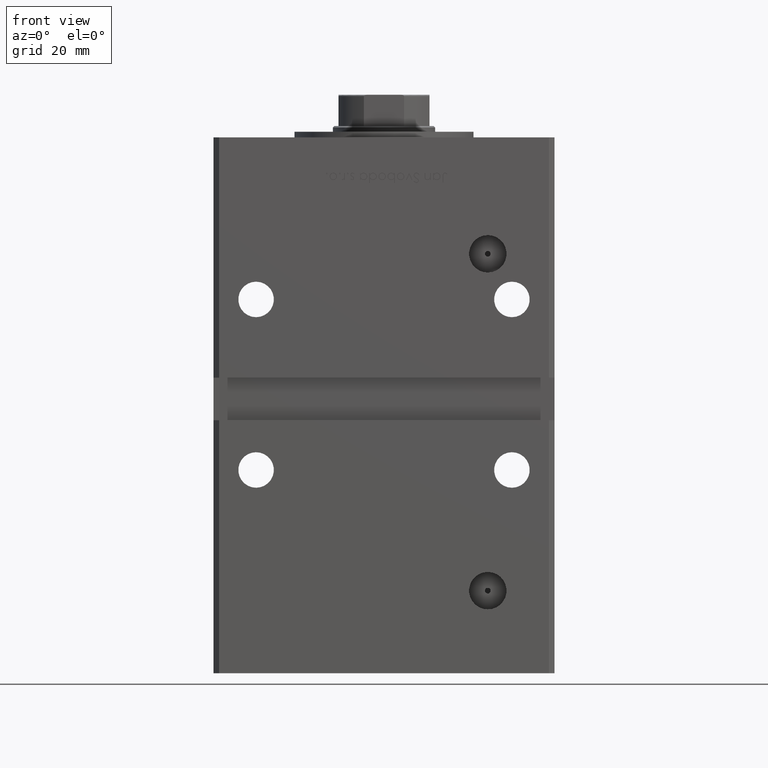
[diagram: clean part render]
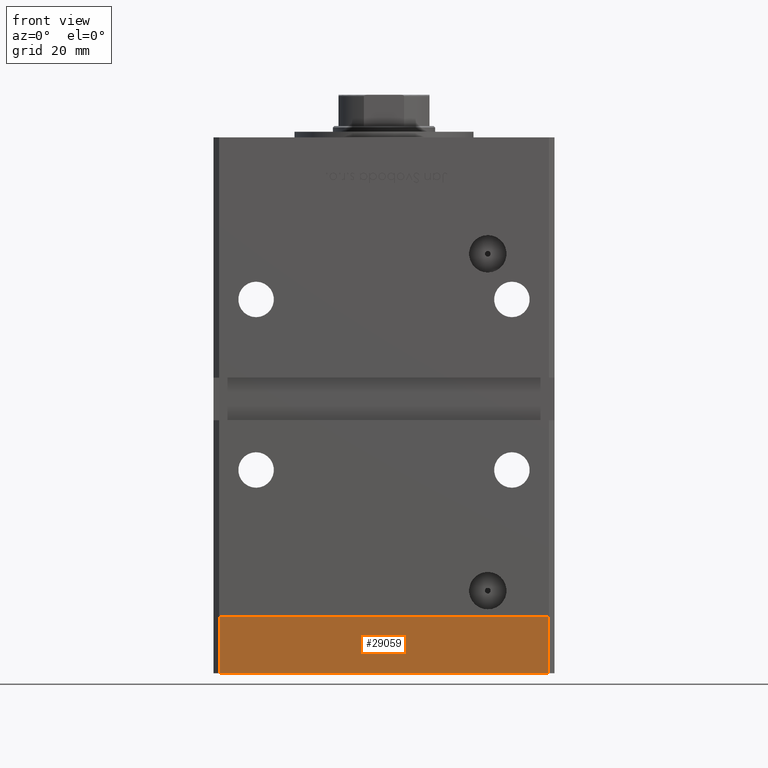
[diagram: same view with one face highlighted and labeled with its STEP entity id]
A machine part, front view. The second image highlights one B-rep face of the part: STEP entity #29059.
In plain terms, the highlighted planar face has unit normal (0, -1, -0).
Its self-contained STEP definition (entity closure, byte-faithful):
#2891 = DIRECTION ( 'NONE',  ( 0.000000000000000000, 0.000000000000000000, 1.000000000000000000 ) ) ;
#6077 = ORIENTED_EDGE ( 'NONE', *, *, #27115, .T. ) ;
#7433 = DIRECTION ( 'NONE',  ( 1.000000000000000000, 1.196361017915039486E-16, 0.000000000000000000 ) ) ;
#9007 = VERTEX_POINT ( 'NONE', #23753 ) ;
#11188 = CARTESIAN_POINT ( 'NONE',  ( -57.99999999999997868, -51.00000000000001421, -20.00000000000000000 ) ) ;
#12740 = LINE ( 'NONE', #29075, #34187 ) ;
#14081 = EDGE_CURVE ( 'NONE', #9007, #51767, #12740, .T. ) ;
#14601 = CARTESIAN_POINT ( 'NONE',  ( 58.00000000000000000, -51.00000000000000711, 0.000000000000000000 ) ) ;
#14962 = CARTESIAN_POINT ( 'NONE',  ( -57.99999999999997868, -51.00000000000001421, -20.00000000000000000 ) ) ;
#18382 = ORIENTED_EDGE ( 'NONE', *, *, #20686, .F. ) ;
#18654 = DIRECTION ( 'NONE',  ( 0.000000000000000000, 0.000000000000000000, 1.000000000000000000 ) ) ;
#20495 = DIRECTION ( 'NONE',  ( 1.000000000000000000, 1.196361017915039486E-16, 0.000000000000000000 ) ) ;
#20686 = EDGE_CURVE ( 'NONE', #51926, #9007, #31830, .T. ) ;
#22216 = CARTESIAN_POINT ( 'NONE',  ( 58.00000000000000000, -51.00000000000000711, -20.00000000000000000 ) ) ;
#22668 = CARTESIAN_POINT ( 'NONE',  ( 58.00000000000000000, -51.00000000000000711, -20.00000000000000000 ) ) ;
#23753 = CARTESIAN_POINT ( 'NONE',  ( -57.99999999999997868, -51.00000000000001421, 0.000000000000000000 ) ) ;
#25717 = VECTOR ( 'NONE', #2891, 1000.000000000000000 ) ;
#27115 = EDGE_CURVE ( 'NONE', #39828, #51767, #43047, .T. ) ;
#27524 = DIRECTION ( 'NONE',  ( 1.196361017915039486E-16, -1.000000000000000000, 0.000000000000000000 ) ) ;
#29059 = ADVANCED_FACE ( 'NONE', ( #51916 ), #47905, .T. ) ;
#29075 = CARTESIAN_POINT ( 'NONE',  ( -57.99999999999997868, -51.00000000000001421, 0.000000000000000000 ) ) ;
#29371 = AXIS2_PLACEMENT_3D ( 'NONE', #11188, #27524, #7433 ) ;
#29741 = ORIENTED_EDGE ( 'NONE', *, *, #45393, .T. ) ;
#30344 = CARTESIAN_POINT ( 'NONE',  ( -57.99999999999997868, -51.00000000000001421, -20.00000000000000000 ) ) ;
#31830 = LINE ( 'NONE', #14962, #25717 ) ;
#33916 = DIRECTION ( 'NONE',  ( 1.000000000000000000, 1.196361017915039486E-16, 0.000000000000000000 ) ) ;
#34187 = VECTOR ( 'NONE', #20495, 1000.000000000000000 ) ;
#38482 = LINE ( 'NONE', #42240, #47558 ) ;
#39828 = VERTEX_POINT ( 'NONE', #22216 ) ;
#42240 = CARTESIAN_POINT ( 'NONE',  ( -57.99999999999997868, -51.00000000000001421, -20.00000000000000000 ) ) ;
#43047 = LINE ( 'NONE', #22668, #45594 ) ;
#45393 = EDGE_CURVE ( 'NONE', #51926, #39828, #38482, .T. ) ;
#45594 = VECTOR ( 'NONE', #18654, 1000.000000000000000 ) ;
#45775 = ORIENTED_EDGE ( 'NONE', *, *, #14081, .F. ) ;
#46633 = EDGE_LOOP ( 'NONE', ( #45775, #18382, #29741, #6077 ) ) ;
#47558 = VECTOR ( 'NONE', #33916, 1000.000000000000000 ) ;
#47905 = PLANE ( 'NONE',  #29371 ) ;
#51767 = VERTEX_POINT ( 'NONE', #14601 ) ;
#51916 = FACE_OUTER_BOUND ( 'NONE', #46633, .T. ) ;
#51926 = VERTEX_POINT ( 'NONE', #30344 ) ;